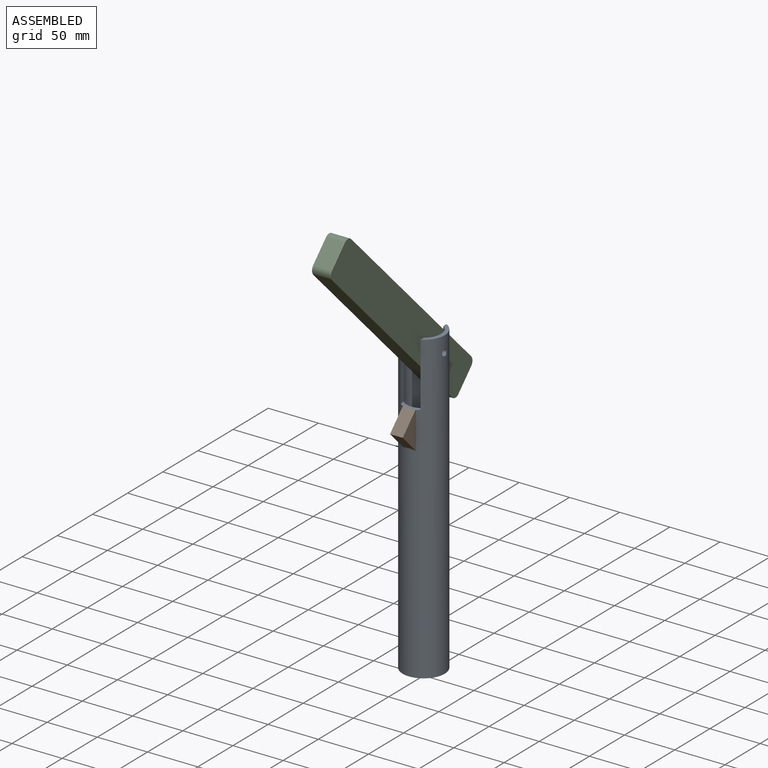
[diagram: assembled view]
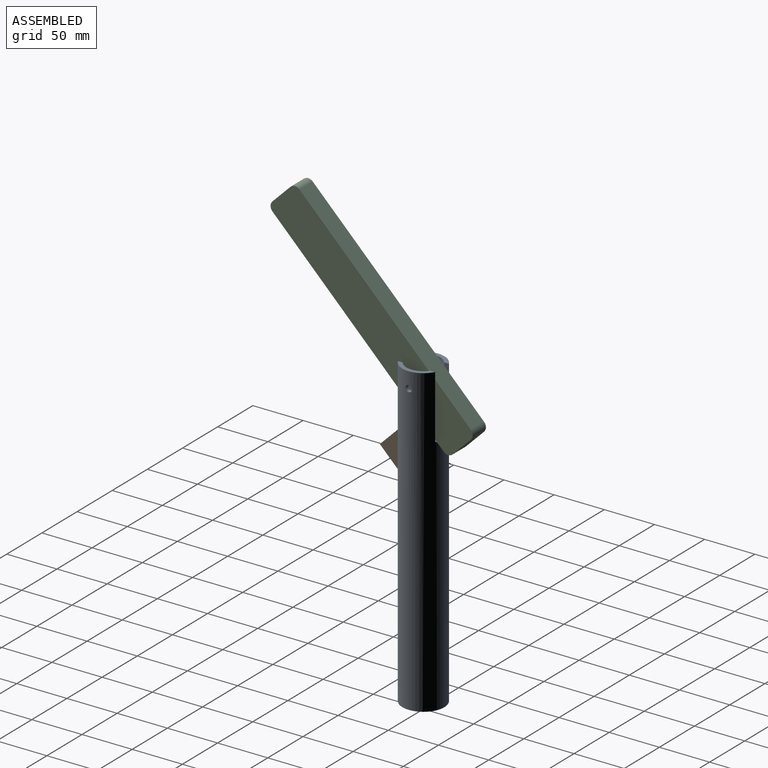
[diagram: assembled view, second angle]
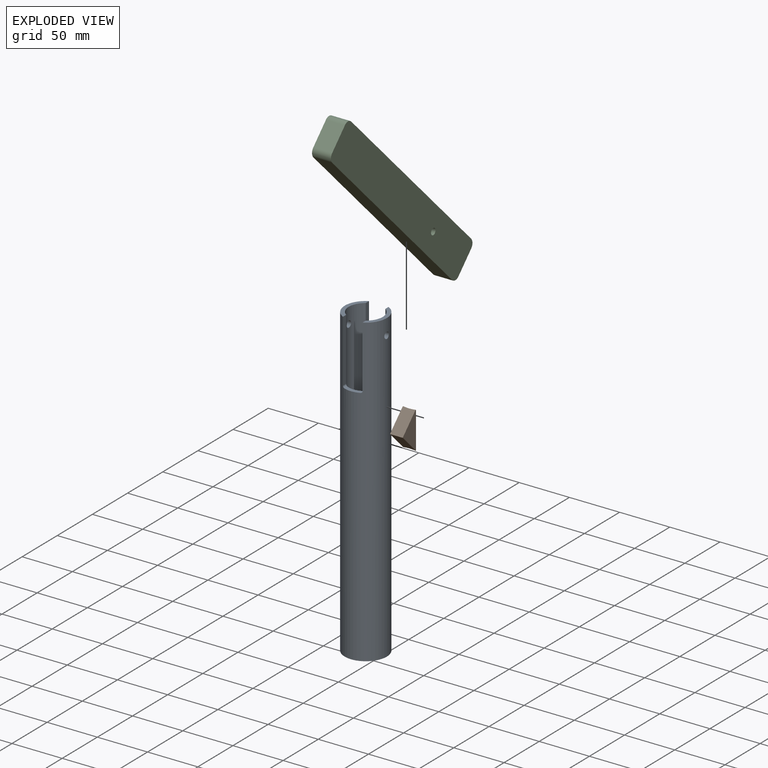
[diagram: exploded view]
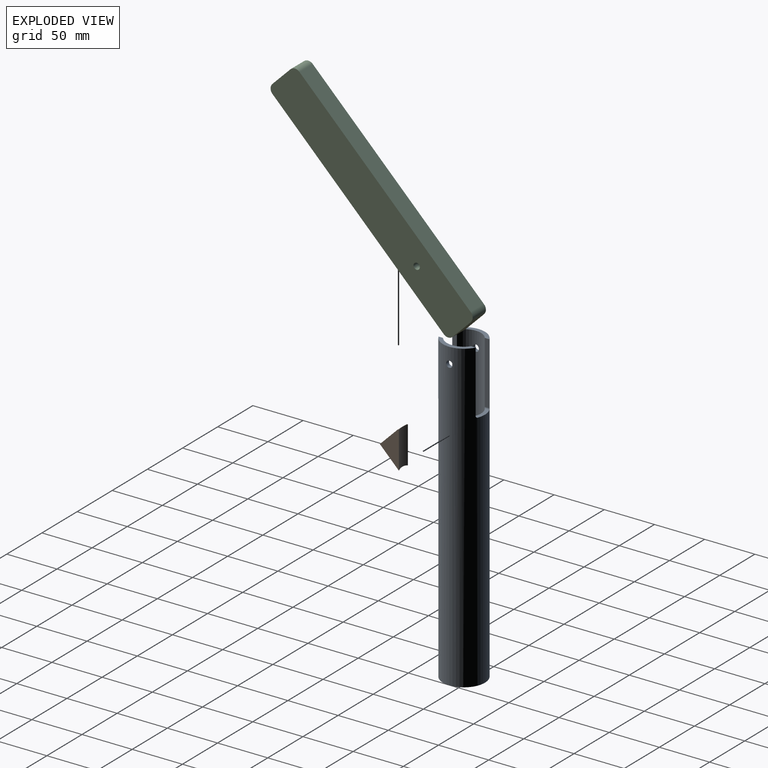
[diagram: exploded view, second angle]
ASSEMBLY  parts=3 mates=3
PART A: 17 faces, bbox 41.9x41.9x304.8 mm
  f0: cylinder r=17.02mm len=304.8mm, axis (0,0,-1), area 29884.2mm2, adj f2,f3,f4,f5,f6,f7,f8,f9
  f1: cylinder r=20.93mm len=304.8mm, axis (0,0,-1), area 37436.9mm2, adj f2,f3,f4,f5,f6,f7,f8,f9
  f2: plane 37.01x11.15mm, normal (0,0,1), area 152.7mm2, adj f0,f1,f9,f13
  f3: plane 37.01x11.15mm, normal (0,0,1), area 152.7mm2, adj f0,f1,f8,f14
  f4: plane 41.86x41.86mm, normal (0,0,-1), area 466.3mm2, adj f0,f1
  f5: cylinder r=1.59mm len=5.33mm, axis (0,-1,0), area 11.2mm2, adj f0,f1,f6,f9
  f6: plane 16.38x6.01mm, normal (0,0,1), area 66.3mm2, adj f0,f1,f5,f7
  f7: cylinder r=1.59mm len=5.33mm, axis (0,-1,0), area 11.2mm2, adj f0,f1,f6,f8
  f8: plane 61.91x4.58mm, normal (1,0,0), area 283.4mm2, adj f0,f1,f3,f7
  f9: plane 61.91x4.58mm, normal (-1,0,0), area 283.4mm2, adj f0,f1,f2,f5
  f10: cylinder r=1.59mm len=5.33mm, axis (0,-1,0), area 11.2mm2, adj f0,f1,f11,f14
  f11: plane 16.38x6.01mm, normal (0,0,1), area 66.3mm2, adj f0,f1,f10,f12
  f12: cylinder r=1.59mm len=5.33mm, axis (0,-1,0), area 11.2mm2, adj f0,f1,f11,f13
  f13: plane 61.91x4.58mm, normal (-1,0,0), area 283.4mm2, adj f0,f1,f2,f12
  f14: plane 61.91x4.58mm, normal (1,0,0), area 283.4mm2, adj f0,f1,f3,f10
  f15: cylinder r=3.17mm len=6.35mm, axis (1,0,0), area 78.6mm2, adj f0,f1
  f16: cylinder r=3.17mm len=6.35mm, axis (1,0,0), area 78.6mm2, adj f0,f1
PART B: 7 faces, bbox 12.7x18.9x36.9 mm
  f0: plane 6.35x0.99mm, normal (0,0,1), area 2.1mm2, adj f1,f3,f6
  f1: plane 36.91x18.95mm, normal (1,0,0), area 358.5mm2, adj f0,f3,f4,f6
  f2: plane 36.91x18.95mm, normal (-1,0,0), area 358.5mm2, adj f3,f4,f5,f6
  f3: plane 17.96x17.96mm, normal (0,-0.71,0.71), area 322.6mm2, adj f0,f1,f2,f4,f5
  f4: plane 18.95x18.95mm, normal (0,-0.71,-0.71), area 328.4mm2, adj f1,f2,f3,f6
  f5: plane 6.35x0.99mm, normal (0,0,1), area 2.1mm2, adj f2,f3,f6
  f6: cylinder r=20.93mm len=36.91mm, axis (0,0,-1), area 467.8mm2, adj f0,f1,f2,f4,f5
PART C: 11 faces, bbox 18.8x254x38.1 mm
  f0: plane 241.3x18.85mm, normal (0,0,1), area 4547.7mm2, adj f5,f6,f7,f10
  f1: plane 25.4x18.85mm, normal (0,-1,0), area 478.7mm2, adj f5,f6,f7,f8
  f2: plane 241.3x18.85mm, normal (0,0,-1), area 4547.7mm2, adj f5,f6,f8,f9
  f3: cylinder r=3.17mm len=18.85mm, axis (-1,0,0), area 376mm2, adj f5,f6
  f4: plane 25.4x18.85mm, normal (0,1,0), area 478.7mm2, adj f5,f6,f9,f10
  f5: plane 254x38.1mm, normal (1,0,0), area 9611.1mm2, adj f0,f1,f2,f3,f4,f7,f8,f9
  f6: plane 254x38.1mm, normal (-1,0,0), area 9611.1mm2, adj f0,f1,f2,f3,f4,f7,f8,f9
  f7: cylinder r=6.35mm len=18.85mm, axis (1,0,0), area 188mm2, adj f0,f1,f5,f6
  f8: cylinder r=6.35mm len=18.85mm, axis (-1,0,0), area 188mm2, adj f1,f2,f5,f6
  f9: cylinder r=6.35mm len=18.85mm, axis (1,0,0), area 188mm2, adj f2,f4,f5,f6
  f10: cylinder r=6.35mm len=18.85mm, axis (-1,0,0), area 188mm2, adj f0,f4,f5,f6
PLACE A at identity fixed
PLACE B at identity
PLACE C rot(axis=(-1,0,0),45deg) t=(0.1,-204.47,84.7)mm
MATE fastened A.f0 <-> B.f6  axis (0,0,1) through (0,0,241.3)mm
MATE parallel C.f5 <-> A.f13  axis (1,0,0) through (9.52,-45.05,334.22)mm
MATE cylindrical C.f3 <-> A.f15  axis (1,0,0) through (9.52,0,289.17)mm
